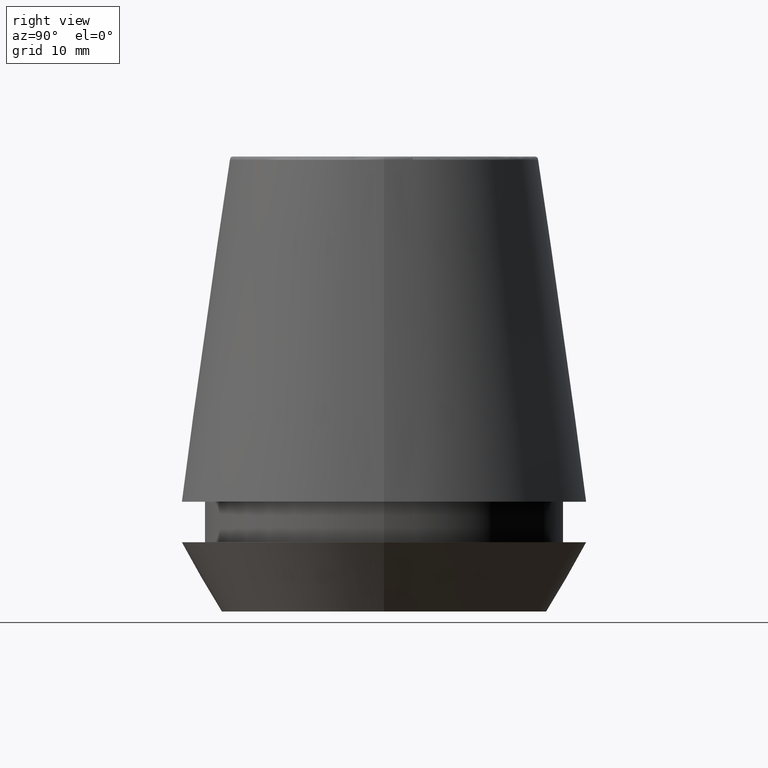
[diagram: clean part render]
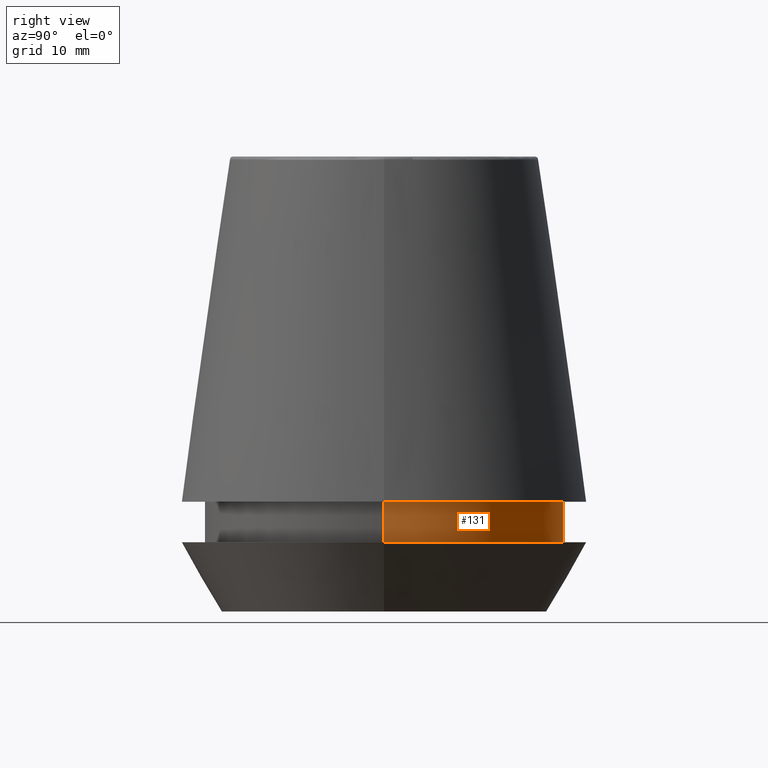
[diagram: same view with one face highlighted and labeled with its STEP entity id]
A machine part, right view. The second image highlights one B-rep face of the part: STEP entity #131.
In plain terms, the highlighted cylindrical surface (partial cylindrical patch) has radius 18.1 mm, axis along (-0, -0, 1).
Its self-contained STEP definition (entity closure, byte-faithful):
#9 = ORIENTED_EDGE ( 'NONE', *, *, #365, .F. ) ;
#13 = EDGE_CURVE ( 'NONE', #96, #133, #349, .T. ) ;
#16 = EDGE_LOOP ( 'NONE', ( #248, #73, #206, #9 ) ) ;
#18 = CARTESIAN_POINT ( 'NONE',  ( 0.0000000000000000000, 0.0000000000000000000, 6.999999999999999100 ) ) ;
#44 = DIRECTION ( 'NONE',  ( 1.000000000000000000, 0.0000000000000000000, 0.0000000000000000000 ) ) ;
#50 = AXIS2_PLACEMENT_3D ( 'NONE', #18, #217, #44 ) ;
#59 = CARTESIAN_POINT ( 'NONE',  ( -18.10000000000000500, 2.216610706456710000E-015, 46.00000000000000000 ) ) ;
#73 = ORIENTED_EDGE ( 'NONE', *, *, #280, .T. ) ;
#85 = VECTOR ( 'NONE', #263, 1000.000000000000000 ) ;
#91 = CARTESIAN_POINT ( 'NONE',  ( -18.10000000000000100, 2.216610706456709600E-015, 6.999999999999999100 ) ) ;
#96 = VERTEX_POINT ( 'NONE', #174 ) ;
#104 = VECTOR ( 'NONE', #322, 1000.000000000000000 ) ;
#124 = DIRECTION ( 'NONE',  ( -0.0000000000000000000, -0.0000000000000000000, 1.000000000000000000 ) ) ;
#126 = LINE ( 'NONE', #59, #85 ) ;
#128 = FACE_OUTER_BOUND ( 'NONE', #16, .T. ) ;
#131 = ADVANCED_FACE ( 'NONE', ( #128 ), #134, .T. ) ;
#133 = VERTEX_POINT ( 'NONE', #313 ) ;
#134 = CYLINDRICAL_SURFACE ( 'NONE', #192, 18.10000000000000500 ) ;
#139 = CARTESIAN_POINT ( 'NONE',  ( 18.10000000000000500, 0.0000000000000000000, 46.00000000000000000 ) ) ;
#148 = AXIS2_PLACEMENT_3D ( 'NONE', #292, #124, #321 ) ;
#164 = CIRCLE ( 'NONE', #50, 18.10000000000000100 ) ;
#166 = CARTESIAN_POINT ( 'NONE',  ( 0.0000000000000000000, 0.0000000000000000000, 46.00000000000000000 ) ) ;
#174 = CARTESIAN_POINT ( 'NONE',  ( 18.10000000000000500, 0.0000000000000000000, 11.09999999999999800 ) ) ;
#185 = CARTESIAN_POINT ( 'NONE',  ( 18.10000000000000100, 0.0000000000000000000, 6.999999999999999100 ) ) ;
#192 = AXIS2_PLACEMENT_3D ( 'NONE', #166, #366, #281 ) ;
#206 = ORIENTED_EDGE ( 'NONE', *, *, #13, .F. ) ;
#217 = DIRECTION ( 'NONE',  ( -0.0000000000000000000, -0.0000000000000000000, 1.000000000000000000 ) ) ;
#247 = VERTEX_POINT ( 'NONE', #91 ) ;
#248 = ORIENTED_EDGE ( 'NONE', *, *, #289, .T. ) ;
#263 = DIRECTION ( 'NONE',  ( -0.0000000000000000000, -0.0000000000000000000, 1.000000000000000000 ) ) ;
#267 = LINE ( 'NONE', #139, #104 ) ;
#280 = EDGE_CURVE ( 'NONE', #247, #133, #126, .T. ) ;
#281 = DIRECTION ( 'NONE',  ( 1.000000000000000000, 0.0000000000000000000, 0.0000000000000000000 ) ) ;
#289 = EDGE_CURVE ( 'NONE', #373, #247, #164, .T. ) ;
#292 = CARTESIAN_POINT ( 'NONE',  ( 0.0000000000000000000, 0.0000000000000000000, 11.09999999999999800 ) ) ;
#313 = CARTESIAN_POINT ( 'NONE',  ( -18.10000000000000500, 2.216610706456710000E-015, 11.09999999999999800 ) ) ;
#321 = DIRECTION ( 'NONE',  ( 1.000000000000000000, 0.0000000000000000000, 0.0000000000000000000 ) ) ;
#322 = DIRECTION ( 'NONE',  ( -0.0000000000000000000, -0.0000000000000000000, 1.000000000000000000 ) ) ;
#349 = CIRCLE ( 'NONE', #148, 18.10000000000000500 ) ;
#365 = EDGE_CURVE ( 'NONE', #373, #96, #267, .T. ) ;
#366 = DIRECTION ( 'NONE',  ( -0.0000000000000000000, -0.0000000000000000000, 1.000000000000000000 ) ) ;
#373 = VERTEX_POINT ( 'NONE', #185 ) ;